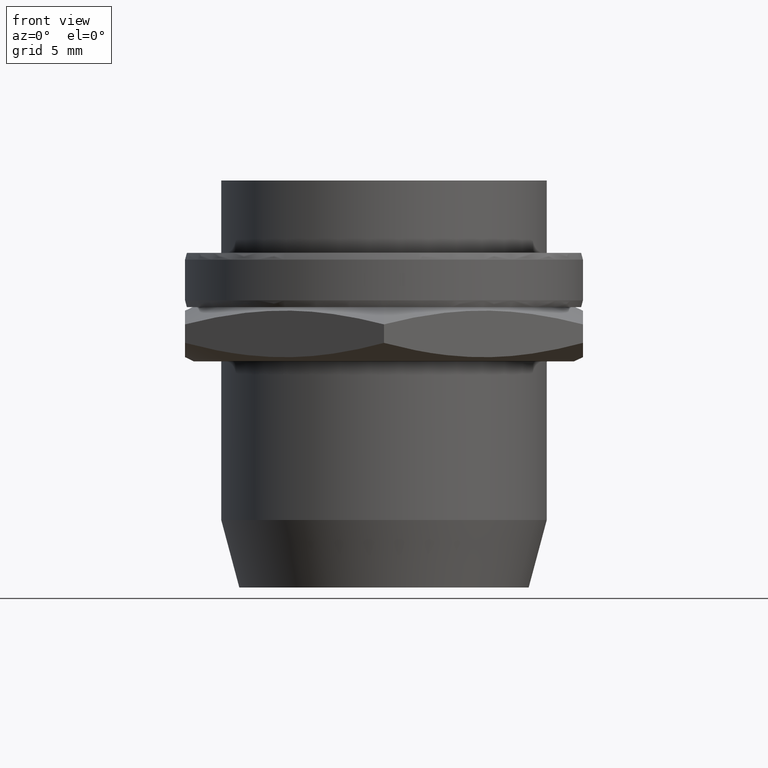
[diagram: clean part render]
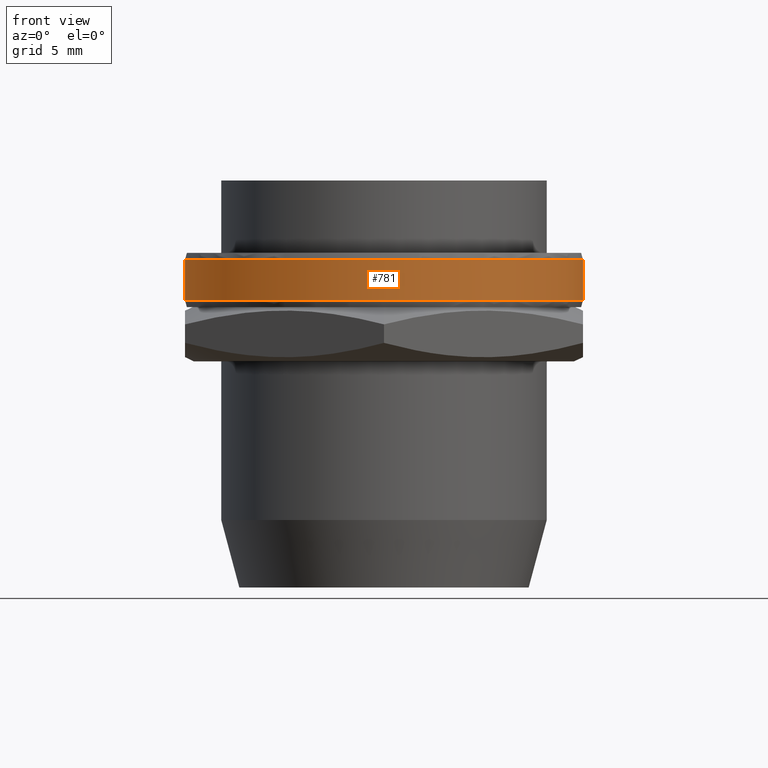
[diagram: same view with one face highlighted and labeled with its STEP entity id]
A machine part, front view. The second image highlights one B-rep face of the part: STEP entity #781.
In plain terms, the highlighted cylindrical surface (bore or boss wall) has radius 11 mm, axis along (0, 0, 1).
Its self-contained STEP definition (entity closure, byte-faithful):
#731=CARTESIAN_POINT('',(0.0,0.0,18.499999999999993));
#732=DIRECTION('',(0.0,0.0,1.0));
#733=DIRECTION('',(1.0,0.0,0.0));
#734=AXIS2_PLACEMENT_3D('',#731,#732,#733);
#735=CYLINDRICAL_SURFACE('',#734,11.000000000000455);
#736=CARTESIAN_POINT('',(11.000000000000455,0.0,18.126794913681906));
#737=VERTEX_POINT('',#736);
#738=CARTESIAN_POINT('',(11.000000000000455,0.0,15.873205086318078));
#739=VERTEX_POINT('',#738);
#740=CARTESIAN_POINT('',(11.000000000000455,0.0,18.126794913681906));
#741=DIRECTION('',(0.0,0.0,-1.0));
#742=VECTOR('',#741,2.253589827363827);
#743=LINE('',#740,#742);
#744=EDGE_CURVE('',#737,#739,#743,.T.);
#745=ORIENTED_EDGE('',*,*,#744,.T.);
#746=CARTESIAN_POINT('',(-11.000000000000455,0.0,15.873205086318078));
#747=VERTEX_POINT('',#746);
#748=CARTESIAN_POINT('',(0.0,0.0,15.873205086318078));
#749=DIRECTION('',(0.0,0.0,1.0));
#750=DIRECTION('',(1.0,0.0,0.0));
#751=AXIS2_PLACEMENT_3D('',#748,#749,#750);
#752=CIRCLE('',#751,11.000000000000455);
#753=EDGE_CURVE('',#739,#747,#752,.T.);
#754=ORIENTED_EDGE('',*,*,#753,.T.);
#755=CARTESIAN_POINT('',(0.0,0.0,15.873205086318078));
#756=DIRECTION('',(0.0,0.0,1.0));
#757=DIRECTION('',(1.0,0.0,0.0));
#758=AXIS2_PLACEMENT_3D('',#755,#756,#757);
#759=CIRCLE('',#758,11.000000000000455);
#760=EDGE_CURVE('',#747,#739,#759,.T.);
#761=ORIENTED_EDGE('',*,*,#760,.T.);
#762=ORIENTED_EDGE('',*,*,#744,.F.);
#763=CARTESIAN_POINT('',(-11.000000000000455,0.0,18.126794913681906));
#764=VERTEX_POINT('',#763);
#765=CARTESIAN_POINT('',(0.0,0.0,18.126794913681906));
#766=DIRECTION('',(0.0,0.0,1.0));
#767=DIRECTION('',(1.0,0.0,0.0));
#768=AXIS2_PLACEMENT_3D('',#765,#766,#767);
#769=CIRCLE('',#768,11.000000000000455);
#770=EDGE_CURVE('',#764,#737,#769,.T.);
#771=ORIENTED_EDGE('',*,*,#770,.F.);
#772=CARTESIAN_POINT('',(0.0,0.0,18.126794913681906));
#773=DIRECTION('',(0.0,0.0,1.0));
#774=DIRECTION('',(1.0,0.0,0.0));
#775=AXIS2_PLACEMENT_3D('',#772,#773,#774);
#776=CIRCLE('',#775,11.000000000000455);
#777=EDGE_CURVE('',#737,#764,#776,.T.);
#778=ORIENTED_EDGE('',*,*,#777,.F.);
#779=EDGE_LOOP('',(#745,#754,#761,#762,#771,#778));
#780=FACE_OUTER_BOUND('',#779,.T.);
#781=ADVANCED_FACE('',(#780),#735,.T.);